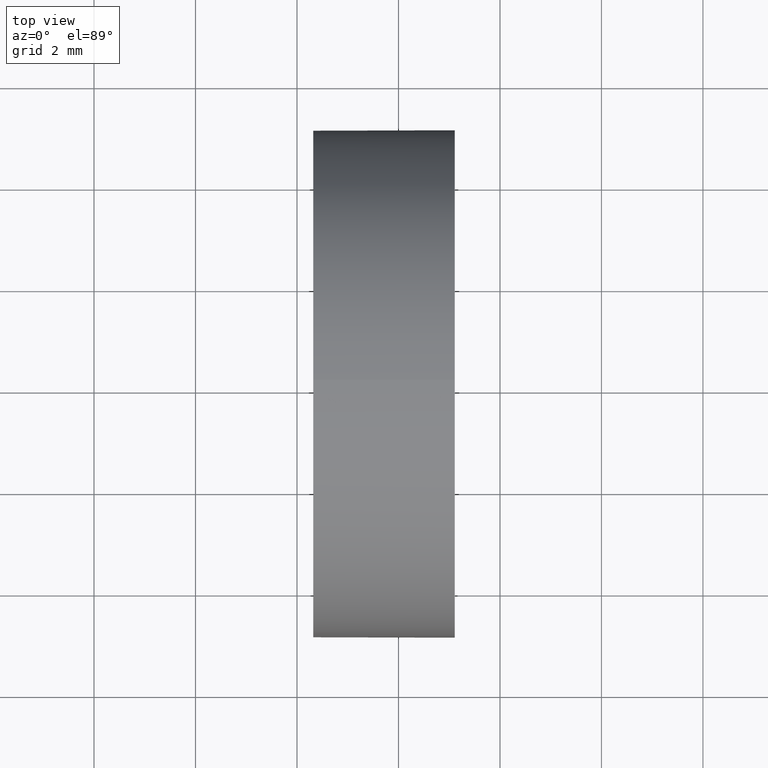
[diagram: clean part render]
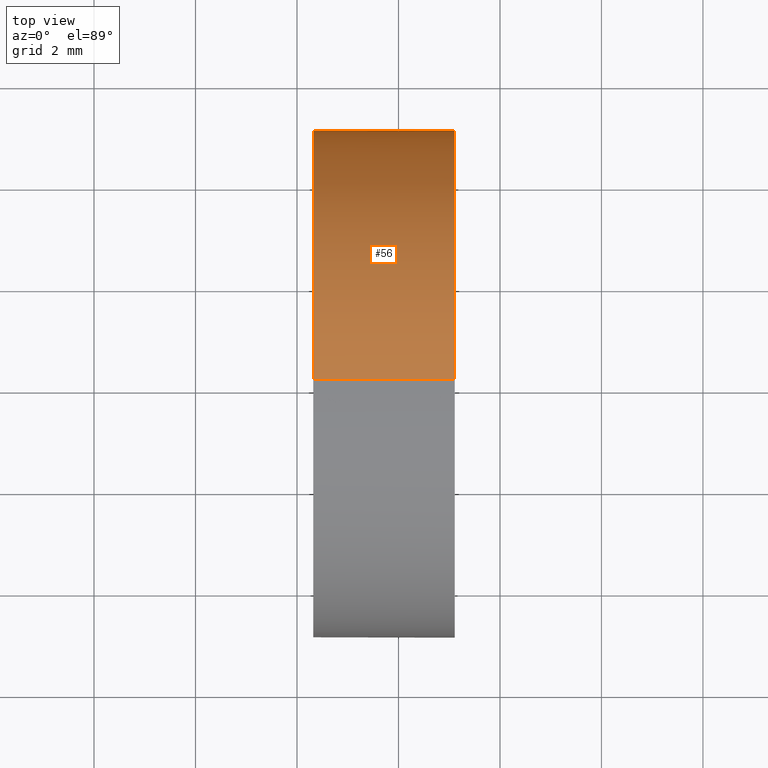
[diagram: same view with one face highlighted and labeled with its STEP entity id]
A machine part, top view. The second image highlights one B-rep face of the part: STEP entity #56.
In plain terms, the highlighted cylindrical surface (partial cylindrical patch) has radius 5 mm, axis along (-1, -0, -0).
Its self-contained STEP definition (entity closure, byte-faithful):
#9 = VERTEX_POINT ( 'NONE', #184 ) ;
#10 = DIRECTION ( 'NONE',  ( 0.0000000000000000000, 0.0000000000000000000, 1.000000000000000000 ) ) ;
#21 = AXIS2_PLACEMENT_3D ( 'NONE', #93, #95, #32 ) ;
#22 = FACE_OUTER_BOUND ( 'NONE', #168, .T. ) ;
#27 = LINE ( 'NONE', #172, #105 ) ;
#28 = CARTESIAN_POINT ( 'NONE',  ( 44.31958549791029600, 26.08904114919495900, -5.000000000000000900 ) ) ;
#31 = VERTEX_POINT ( 'NONE', #155 ) ;
#32 = DIRECTION ( 'NONE',  ( 0.0000000000000000000, 0.0000000000000000000, 1.000000000000000000 ) ) ;
#39 = EDGE_CURVE ( 'NONE', #31, #153, #27, .T. ) ;
#47 = DIRECTION ( 'NONE',  ( 0.0000000000000000000, 0.0000000000000000000, 1.000000000000000000 ) ) ;
#53 = CYLINDRICAL_SURFACE ( 'NONE', #102, 5.000000000000000900 ) ;
#56 = ADVANCED_FACE ( 'NONE', ( #22 ), #53, .T. ) ;
#71 = CIRCLE ( 'NONE', #170, 5.000000000000000900 ) ;
#73 = VERTEX_POINT ( 'NONE', #28 ) ;
#75 = DIRECTION ( 'NONE',  ( -1.000000000000000000, -0.0000000000000000000, -0.0000000000000000000 ) ) ;
#78 = CARTESIAN_POINT ( 'NONE',  ( 42.44986111413682300, 26.08904114919495900, 0.0000000000000000000 ) ) ;
#83 = VERTEX_POINT ( 'NONE', #104 ) ;
#86 = CIRCLE ( 'NONE', #21, 5.000000000000000900 ) ;
#89 = DIRECTION ( 'NONE',  ( -1.000000000000000000, -0.0000000000000000000, -0.0000000000000000000 ) ) ;
#93 = CARTESIAN_POINT ( 'NONE',  ( 47.10958549791029500, 26.08904114919495900, 0.0000000000000000000 ) ) ;
#94 = EDGE_CURVE ( 'NONE', #153, #73, #130, .T. ) ;
#95 = DIRECTION ( 'NONE',  ( -1.000000000000000000, -0.0000000000000000000, -0.0000000000000000000 ) ) ;
#98 = DIRECTION ( 'NONE',  ( 0.0000000000000000000, 0.0000000000000000000, 1.000000000000000000 ) ) ;
#102 = AXIS2_PLACEMENT_3D ( 'NONE', #78, #75, #10 ) ;
#104 = CARTESIAN_POINT ( 'NONE',  ( 47.10958549791029500, 26.08904114919495900, -5.000000000000000900 ) ) ;
#105 = VECTOR ( 'NONE', #128, 1000.000000000000000 ) ;
#107 = CARTESIAN_POINT ( 'NONE',  ( 47.10958549791029500, 26.08904114919495900, 0.0000000000000000000 ) ) ;
#110 = EDGE_CURVE ( 'NONE', #83, #73, #142, .T. ) ;
#121 = CARTESIAN_POINT ( 'NONE',  ( 44.31958549791029600, 26.08904114919495900, 5.000000000000000900 ) ) ;
#125 = ORIENTED_EDGE ( 'NONE', *, *, #39, .F. ) ;
#128 = DIRECTION ( 'NONE',  ( -1.000000000000000000, -0.0000000000000000000, -0.0000000000000000000 ) ) ;
#130 = CIRCLE ( 'NONE', #156, 5.000000000000000900 ) ;
#142 = LINE ( 'NONE', #162, #165 ) ;
#146 = ORIENTED_EDGE ( 'NONE', *, *, #160, .T. ) ;
#153 = VERTEX_POINT ( 'NONE', #121 ) ;
#154 = EDGE_CURVE ( 'NONE', #9, #83, #71, .T. ) ;
#155 = CARTESIAN_POINT ( 'NONE',  ( 47.10958549791029500, 26.08904114919495900, 5.000000000000000900 ) ) ;
#156 = AXIS2_PLACEMENT_3D ( 'NONE', #176, #89, #47 ) ;
#160 = EDGE_CURVE ( 'NONE', #31, #9, #86, .T. ) ;
#162 = CARTESIAN_POINT ( 'NONE',  ( 42.44986111413682300, 26.08904114919495900, -5.000000000000000900 ) ) ;
#164 = DIRECTION ( 'NONE',  ( -1.000000000000000000, -0.0000000000000000000, -0.0000000000000000000 ) ) ;
#165 = VECTOR ( 'NONE', #166, 1000.000000000000000 ) ;
#166 = DIRECTION ( 'NONE',  ( -1.000000000000000000, -0.0000000000000000000, -0.0000000000000000000 ) ) ;
#168 = EDGE_LOOP ( 'NONE', ( #173, #186, #174, #125, #146 ) ) ;
#170 = AXIS2_PLACEMENT_3D ( 'NONE', #107, #164, #98 ) ;
#172 = CARTESIAN_POINT ( 'NONE',  ( 42.44986111413682300, 26.08904114919495900, 5.000000000000000900 ) ) ;
#173 = ORIENTED_EDGE ( 'NONE', *, *, #154, .T. ) ;
#174 = ORIENTED_EDGE ( 'NONE', *, *, #94, .F. ) ;
#176 = CARTESIAN_POINT ( 'NONE',  ( 44.31958549791029600, 26.08904114919495900, 0.0000000000000000000 ) ) ;
#184 = CARTESIAN_POINT ( 'NONE',  ( 47.10958549791029500, 31.08904114919496200, 0.0000000000000000000 ) ) ;
#186 = ORIENTED_EDGE ( 'NONE', *, *, #110, .T. ) ;